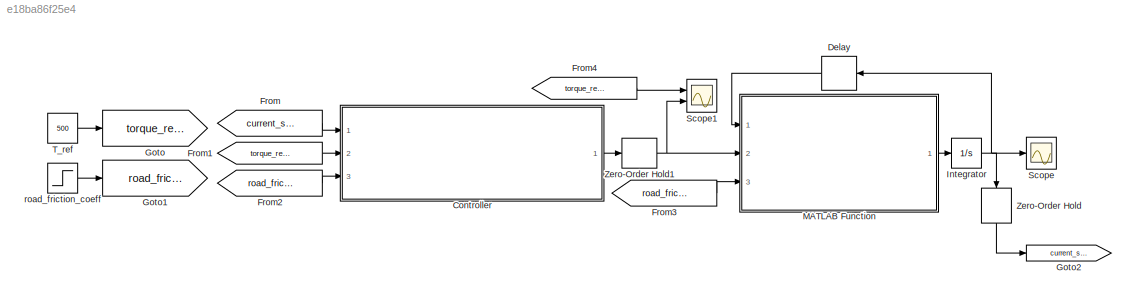
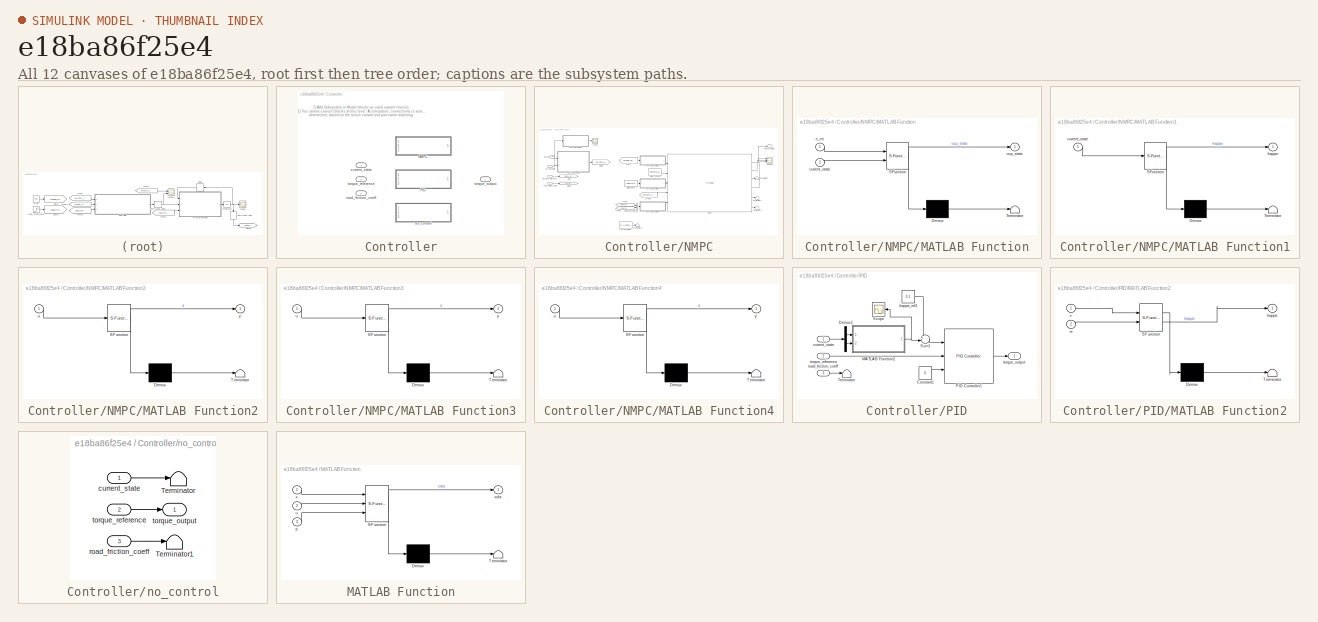
[diagram: thumbnail index - all 12 canvases of the model, root first then tree order]
MODEL slx_e18ba86f25e4
KIND model
CONFIG AbsTol = auto
CONFIG EnableMultiTasking = off
CONFIG FixedStep = auto
CONFIG MaxStep = auto
CONFIG MinStep = auto
CONFIG RelTol = 1e-3
CONFIG SampleTimeConstraint = Unconstrained
CONFIG SolverName = VariableStepAuto
CONFIG StartTime = 0.0
CONFIG StopTime = 3
BLOCK [SubSystem] Controller
  Ports = [3, 1]
  RequestExecContextInheritance = off
  Variant = on
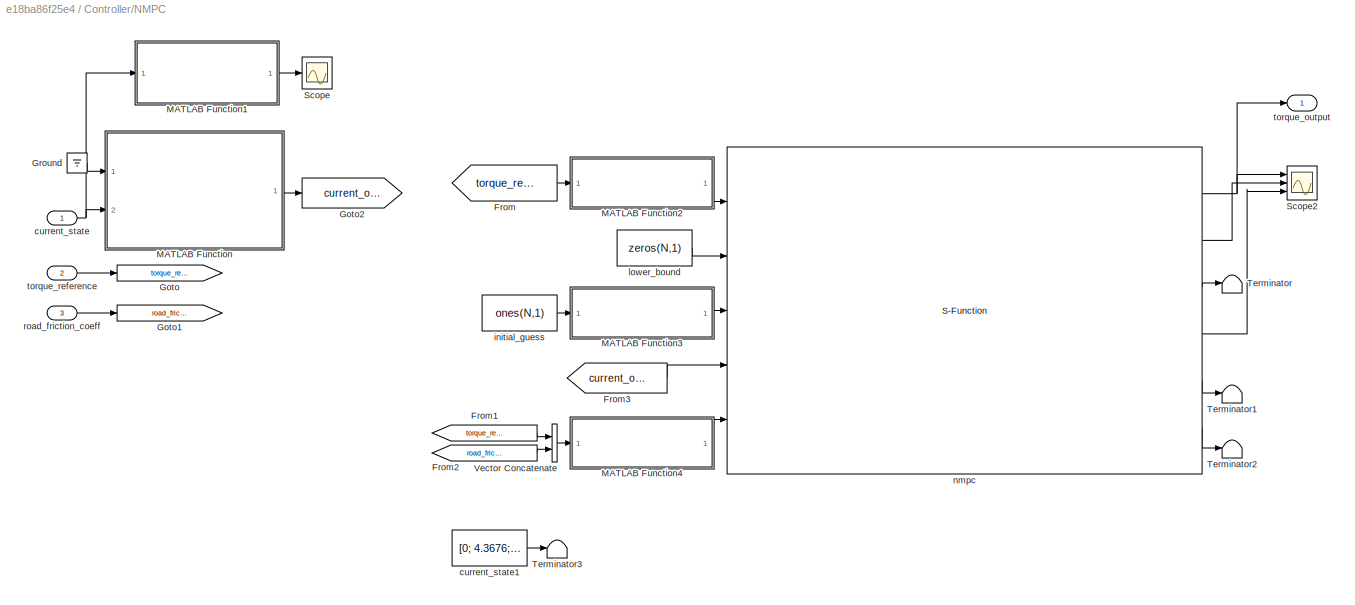
BLOCK [SubSystem] Controller/NMPC
  Ports = [3, 1]
  RequestExecContextInheritance = off
  VariantControl = controller_type == 1
BLOCK [From] Controller/NMPC/From
  GotoTag = torque_reference
BLOCK [From] Controller/NMPC/From1
  GotoTag = torque_reference
BLOCK [From] Controller/NMPC/From2
  GotoTag = road_friction_coeff
BLOCK [From] Controller/NMPC/From3
  GotoTag = current_ocp_state
BLOCK [Goto] Controller/NMPC/Goto
  GotoTag = torque_reference
BLOCK [Goto] Controller/NMPC/Goto1
  GotoTag = road_friction_coeff
BLOCK [Goto] Controller/NMPC/Goto2
  GotoTag = current_ocp_state
BLOCK [Ground] Controller/NMPC/Ground
BLOCK [SubSystem] Controller/NMPC/MATLAB Function
  ErrorFcn = Stateflow.Translate.translate
  PermitHierarchicalResolution = ExplicitOnly
  Ports = [2, 1]
  RequestExecContextInheritance = off
  SFBlockType = MATLAB Function
  TreatAsAtomicUnit = on
BLOCK [Demux] Controller/NMPC/MATLAB Function/ Demux 
  Outputs = 1
  Ports = [1, 1]
BLOCK [S-Function] Controller/NMPC/MATLAB Function/ SFunction 
  EnableBusSupport = on
  FunctionName = sf_sfun
  Parameters = R
  PortCounts = [2 2]
  Ports = [2, 2]
  SFcnIsStateOwnerBlock = off
  SFunctionDeploymentMode = off
  Tag = Stateflow S-Function 1
BLOCK [Terminator] Controller/NMPC/MATLAB Function/ Terminator 
BLOCK [Inport] Controller/NMPC/MATLAB Function/current_state
  Port = 2
BLOCK [Inport] Controller/NMPC/MATLAB Function/e_int
BLOCK [Outport] Controller/NMPC/MATLAB Function/ocp_state
BLOCK [SubSystem] Controller/NMPC/MATLAB Function1
  ErrorFcn = Stateflow.Translate.translate
  NameLocation = top
  PermitHierarchicalResolution = ExplicitOnly
  Ports = [1, 1]
  RequestExecContextInheritance = off
  SFBlockType = MATLAB Function
  TreatAsAtomicUnit = on
BLOCK [Demux] Controller/NMPC/MATLAB Function1/ Demux 
  Outputs = 1
  Ports = [1, 1]
BLOCK [S-Function] Controller/NMPC/MATLAB Function1/ SFunction 
  EnableBusSupport = on
  FunctionName = sf_sfun
  Parameters = R
  PortCounts = [1 2]
  Ports = [1, 2]
  SFcnIsStateOwnerBlock = off
  SFunctionDeploymentMode = off
  Tag = Stateflow S-Function 6
BLOCK [Terminator] Controller/NMPC/MATLAB Function1/ Terminator 
BLOCK [Inport] Controller/NMPC/MATLAB Function1/current_state
BLOCK [Outport] Controller/NMPC/MATLAB Function1/kappa
BLOCK [SubSystem] Controller/NMPC/MATLAB Function2
  ErrorFcn = Stateflow.Translate.translate
  PermitHierarchicalResolution = ExplicitOnly
  Ports = [1, 1]
  RequestExecContextInheritance = off
  SFBlockType = MATLAB Function
  TreatAsAtomicUnit = on
BLOCK [Demux] Controller/NMPC/MATLAB Function2/ Demux 
  Outputs = 1
  Ports = [1, 1]
BLOCK [S-Function] Controller/NMPC/MATLAB Function2/ SFunction 
  EnableBusSupport = on
  FunctionName = sf_sfun
  Parameters = N
  PortCounts = [1 2]
  Ports = [1, 2]
  SFcnIsStateOwnerBlock = off
  SFunctionDeploymentMode = off
  Tag = Stateflow S-Function 3
BLOCK [Terminator] Controller/NMPC/MATLAB Function2/ Terminator 
BLOCK [Inport] Controller/NMPC/MATLAB Function2/u
BLOCK [Outport] Controller/NMPC/MATLAB Function2/y
BLOCK [SubSystem] Controller/NMPC/MATLAB Function3
  ErrorFcn = Stateflow.Translate.translate
  PermitHierarchicalResolution = ExplicitOnly
  Ports = [1, 1]
  RequestExecContextInheritance = off
  SFBlockType = MATLAB Function
  TreatAsAtomicUnit = on
BLOCK [Demux] Controller/NMPC/MATLAB Function3/ Demux 
  Outputs = 1
  Ports = [1, 1]
BLOCK [S-Function] Controller/NMPC/MATLAB Function3/ SFunction 
  EnableBusSupport = on
  FunctionName = sf_sfun
  Parameters = N
  PortCounts = [1 2]
  Ports = [1, 2]
  SFcnIsStateOwnerBlock = off
  SFunctionDeploymentMode = off
  Tag = Stateflow S-Function 4
BLOCK [Terminator] Controller/NMPC/MATLAB Function3/ Terminator 
BLOCK [Inport] Controller/NMPC/MATLAB Function3/u
BLOCK [Outport] Controller/NMPC/MATLAB Function3/y
BLOCK [SubSystem] Controller/NMPC/MATLAB Function4
  ErrorFcn = Stateflow.Translate.translate
  PermitHierarchicalResolution = ExplicitOnly
  Ports = [1, 1]
  RequestExecContextInheritance = off
  SFBlockType = MATLAB Function
  TreatAsAtomicUnit = on
BLOCK [Demux] Controller/NMPC/MATLAB Function4/ Demux 
  Outputs = 1
  Ports = [1, 1]
BLOCK [S-Function] Controller/NMPC/MATLAB Function4/ SFunction 
  EnableBusSupport = on
  FunctionName = sf_sfun
  Parameters = N
  PortCounts = [1 2]
  Ports = [1, 2]
  SFcnIsStateOwnerBlock = off
  SFunctionDeploymentMode = off
  Tag = Stateflow S-Function 5
BLOCK [Terminator] Controller/NMPC/MATLAB Function4/ Terminator 
BLOCK [Inport] Controller/NMPC/MATLAB Function4/u
BLOCK [Outport] Controller/NMPC/MATLAB Function4/y
BLOCK [Scope] Controller/NMPC/Scope
  Floating = off
  NumInputPorts = 1
  Ports = [1]
  ScopeSpecificationString = Simulink.scopes.TimeScopeBlockCfg('CurrentConfiguration', extmgr.ConfigurationSet(extmgr.Configuration('Core','General UI',true),extmgr.Configuration('Core','Source UI',true),extmgr.Configuration('Sources','WiredSimulink',true,'DataLoggingVariableName','ScopeData2'),extmgr.Configuration('Visuals','Time Domain',true,'SerializedDisplays',{struct('MinYLimReal','-0.01354','MaxYLimReal','0.11618','YLab...<+1427ch>
BLOCK [Scope] Controller/NMPC/Scope2
  Floating = off
  NumInputPorts = 3
  Ports = [3]
  ScopeSpecificationString = Simulink.scopes.TimeScopeBlockCfg('CurrentConfiguration', extmgr.ConfigurationSet(extmgr.Configuration('Core','General UI',true),extmgr.Configuration('Core','Source UI',true),extmgr.Configuration('Sources','WiredSimulink',true,'DataLoggingVariableName','ScopeData1'),extmgr.Configuration('Visuals','Time Domain',true,'SerializedDisplays',{struct('MinYLimReal','33.71687','MaxYLimReal','466.71241','YL...<+2765ch>
BLOCK [Terminator] Controller/NMPC/Terminator
BLOCK [Terminator] Controller/NMPC/Terminator1
BLOCK [Terminator] Controller/NMPC/Terminator2
BLOCK [Terminator] Controller/NMPC/Terminator3
  Commented = on
BLOCK [Concatenate] Controller/NMPC/Vector Concatenate
  Ports = [2, 1]
BLOCK [Inport] Controller/NMPC/current_state
BLOCK [Constant] Controller/NMPC/current_state1
  Commented = on
  SampleTime = Ts
  Value = [0; 4.3676; 0]
BLOCK [Constant] Controller/NMPC/initial_guess
  SampleTime = Ts
  Value = ones(N,1)
BLOCK [Constant] Controller/NMPC/lower_bound
  SampleTime = Ts
  Value = zeros(N,1)
BLOCK [S-Function] Controller/NMPC/nmpc
  EnableBusSupport = off
  FunctionName = nmpc_simulinkBlock
  Ports = [5, 6]
  SFcnIsStateOwnerBlock = off
  SFunctionDeploymentMode = off
  SFunctionModules = nmpc nmpc_simulinkBlock
BLOCK [Inport] Controller/NMPC/road_friction_coeff
  Port = 3
BLOCK [Outport] Controller/NMPC/torque_output
BLOCK [Inport] Controller/NMPC/torque_reference
  Port = 2
BLOCK [SubSystem] Controller/PID
  Ports = [3, 1]
  RequestExecContextInheritance = off
  VariantControl = controller_type == 3
BLOCK [Constant] Controller/PID/Constant1
  SampleTime = Ts
  Value = 0
BLOCK [Demux] Controller/PID/Demux1
  Outputs = 2
  Ports = [1, 2]
BLOCK [SubSystem] Controller/PID/MATLAB Function2
  ErrorFcn = Stateflow.Translate.translate
  NameLocation = top
  PermitHierarchicalResolution = ExplicitOnly
  Ports = [2, 1]
  RequestExecContextInheritance = off
  SFBlockType = MATLAB Function
  TreatAsAtomicUnit = on
BLOCK [Demux] Controller/PID/MATLAB Function2/ Demux 
  Outputs = 1
  Ports = [1, 1]
BLOCK [S-Function] Controller/PID/MATLAB Function2/ SFunction 
  EnableBusSupport = on
  FunctionName = sf_sfun
  Parameters = R
  PortCounts = [2 2]
  Ports = [2, 2]
  SFcnIsStateOwnerBlock = off
  SFunctionDeploymentMode = off
  Tag = Stateflow S-Function 8
BLOCK [Terminator] Controller/PID/MATLAB Function2/ Terminator 
BLOCK [Outport] Controller/PID/MATLAB Function2/kappa
BLOCK [Inport] Controller/PID/MATLAB Function2/v
BLOCK [Inport] Controller/PID/MATLAB Function2/w
  Port = 2
BLOCK [Reference] Controller/PID/PID Controller1  REF=pid_lib/PID Controller
  Ports = [3, 1]
  SourceBlock = pid_lib/PID Controller
  SourceProductBaseCode = SL
  SourceType = PID 1dof
BLOCK [Scope] Controller/PID/Scope
  Floating = off
  NumInputPorts = 1
  Ports = [1]
  ScopeSpecificationString = Simulink.scopes.TimeScopeBlockCfg('CurrentConfiguration', extmgr.ConfigurationSet(extmgr.Configuration('Core','General UI',true),extmgr.Configuration('Core','Source UI',true),extmgr.Configuration('Sources','WiredSimulink',true,'DataLoggingVariableName','ScopeData3'),extmgr.Configuration('Visuals','Time Domain',true,'SerializedDisplays',{struct('MinYLimReal','-0.01834','MaxYLimReal','0.15932','YLab...<+1429ch>
BLOCK [Sum] Controller/PID/Sum1
  Inputs = +-|
  Ports = [2, 1]
BLOCK [Terminator] Controller/PID/Terminator
BLOCK [Inport] Controller/PID/current_state
BLOCK [Constant] Controller/PID/kappa_ref1
  SampleTime = Ts
  Value = 0.1
BLOCK [Inport] Controller/PID/road_friction_coeff
  Port = 3
BLOCK [Outport] Controller/PID/torque_output
BLOCK [Inport] Controller/PID/torque_reference
  Port = 2
BLOCK [Inport] Controller/current_state
BLOCK [SubSystem] Controller/no_control
  Ports = [3, 1]
  RequestExecContextInheritance = off
  VariantControl = controller_type == 0
BLOCK [Terminator] Controller/no_control/Terminator
BLOCK [Terminator] Controller/no_control/Terminator1
BLOCK [Inport] Controller/no_control/current_state
BLOCK [Inport] Controller/no_control/road_friction_coeff
  Port = 3
BLOCK [Outport] Controller/no_control/torque_output
BLOCK [Inport] Controller/no_control/torque_reference
  Port = 2
BLOCK [Inport] Controller/road_friction_coeff
  Port = 3
BLOCK [Outport] Controller/torque_output
BLOCK [Inport] Controller/torque_reference
  Port = 2
BLOCK [Delay] Delay
  DelayLength = 1
  InitialCondition = x0
  InputPortMap = u0
  NameLocation = top
  Ports = [1, 1]
BLOCK [From] From
  GotoTag = current_state
BLOCK [From] From1
  GotoTag = torque_reference
BLOCK [From] From2
  GotoTag = road_friction_coeff
BLOCK [From] From3
  GotoTag = road_friction_coeff
BLOCK [From] From4
  GotoTag = torque_reference
BLOCK [Goto] Goto
  GotoTag = torque_reference
BLOCK [Goto] Goto1
  GotoTag = road_friction_coeff
BLOCK [Goto] Goto2
  GotoTag = current_state
BLOCK [Integrator] Integrator
  InitialCondition = x0
  Ports = [1, 1]
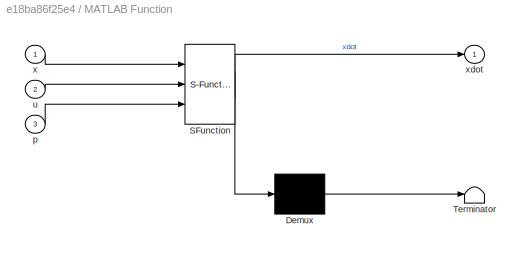
BLOCK [SubSystem] MATLAB Function
  ErrorFcn = Stateflow.Translate.translate
  PermitHierarchicalResolution = ExplicitOnly
  Ports = [3, 1]
  RequestExecContextInheritance = off
  SFBlockType = MATLAB Function
  TreatAsAtomicUnit = on
BLOCK [Demux] MATLAB Function/ Demux 
  Outputs = 1
  Ports = [1, 1]
BLOCK [S-Function] MATLAB Function/ SFunction 
  EnableBusSupport = on
  FunctionName = sf_sfun
  PortCounts = [3 2]
  Ports = [3, 2]
  SFcnIsStateOwnerBlock = off
  SFunctionDeploymentMode = off
  Tag = Stateflow S-Function 2
BLOCK [Terminator] MATLAB Function/ Terminator 
BLOCK [Inport] MATLAB Function/p
  Port = 3
BLOCK [Inport] MATLAB Function/u
  Port = 2
BLOCK [Inport] MATLAB Function/x
BLOCK [Outport] MATLAB Function/xdot
BLOCK [Scope] Scope
  Floating = off
  NumInputPorts = 1
  Ports = [1]
  ScopeSpecificationString = Simulink.scopes.TimeScopeBlockCfg('CurrentConfiguration', extmgr.ConfigurationSet(extmgr.Configuration('Core','General UI',true),extmgr.Configuration('Core','Source UI',true),extmgr.Configuration('Sources','WiredSimulink',true),extmgr.Configuration('Visuals','Time Domain',true,'SerializedDisplays',{struct('MinYLimReal','-0.06245','MaxYLimReal','14.56204','YLabelReal','','MinYLimMag','0.00000','Max...<+1376ch>
BLOCK [Scope] Scope1
  Floating = off
  NumInputPorts = 2
  Ports = [2]
  ScopeSpecificationString = Simulink.scopes.TimeScopeBlockCfg('CurrentConfiguration', extmgr.ConfigurationSet(extmgr.Configuration('Core','General UI',true),extmgr.Configuration('Core','Source UI',true),extmgr.Configuration('Sources','WiredSimulink',true,'DataLoggingVariableName','ScopeData4'),extmgr.Configuration('Visuals','Time Domain',true,'SerializedDisplays',{struct('MinYLimReal','24.14348','MaxYLimReal','552.87295','YL...<+1447ch>
BLOCK [Constant] T_ref
  SampleTime = Ts
  Value = 500
BLOCK [ZeroOrderHold] Zero-Order Hold
  NameLocation = left
  SampleTime = Ts
BLOCK [ZeroOrderHold] Zero-Order Hold1
  SampleTime = Ts/100
BLOCK [Step] road_friction_coeff
  After = 0.05
  Before = 0.15
  SampleTime = Ts
  Time = 0.5
ANNOTATION Controller: 1) Add Subsystem or Model blocks as valid variant choices. 2) You cannot connect blocks at this level. At simulation, connectivity is automatically determined, based on the active variant and port name matching.
LINE Controller/NMPC/From1:1 -> Controller/NMPC/Vector Concatenate:1
LINE Controller/NMPC/From2:1 -> Controller/NMPC/Vector Concatenate:2
LINE Controller/NMPC/From3:1 -> Controller/NMPC/nmpc:4
LINE Controller/NMPC/From:1 -> Controller/NMPC/MATLAB Function2:1
LINE Controller/NMPC/Ground:1 -> Controller/NMPC/MATLAB Function:1
LINE Controller/NMPC/MATLAB Function1:1 -> Controller/NMPC/Scope:1
LINE Controller/NMPC/MATLAB Function2:1 -> Controller/NMPC/nmpc:1
LINE Controller/NMPC/MATLAB Function3:1 -> Controller/NMPC/nmpc:3
LINE Controller/NMPC/MATLAB Function4:1 -> Controller/NMPC/nmpc:5
LINE Controller/NMPC/MATLAB Function:1 -> Controller/NMPC/Goto2:1
LINE Controller/NMPC/Vector Concatenate:1 -> Controller/NMPC/MATLAB Function4:1
LINE Controller/NMPC/current_state1:1 -> Controller/NMPC/Terminator3:1
NET Controller/NMPC/current_state:1 -> Controller/NMPC/MATLAB Function1:1, Controller/NMPC/MATLAB Function:2
LINE Controller/NMPC/initial_guess:1 -> Controller/NMPC/MATLAB Function3:1
LINE Controller/NMPC/lower_bound:1 -> Controller/NMPC/nmpc:2
NET Controller/NMPC/nmpc:1 -> Controller/NMPC/Scope2:1, Controller/NMPC/torque_output:1
LINE Controller/NMPC/nmpc:2 -> Controller/NMPC/Scope2:2
LINE Controller/NMPC/nmpc:3 -> Controller/NMPC/Terminator:1
LINE Controller/NMPC/nmpc:4 -> Controller/NMPC/Scope2:3
LINE Controller/NMPC/nmpc:5 -> Controller/NMPC/Terminator1:1
LINE Controller/NMPC/nmpc:6 -> Controller/NMPC/Terminator2:1
LINE Controller/NMPC/road_friction_coeff:1 -> Controller/NMPC/Goto1:1
LINE Controller/NMPC/torque_reference:1 -> Controller/NMPC/Goto:1
LINE Controller/PID/Constant1:1 -> Controller/PID/PID Controller1:3
LINE Controller/PID/Demux1:1 -> Controller/PID/MATLAB Function2:1
LINE Controller/PID/Demux1:2 -> Controller/PID/MATLAB Function2:2
NET Controller/PID/MATLAB Function2:1 -> Controller/PID/Scope:1, Controller/PID/Sum1:2
LINE Controller/PID/PID Controller1:1 -> Controller/PID/torque_output:1
LINE Controller/PID/Sum1:1 -> Controller/PID/PID Controller1:1
LINE Controller/PID/current_state:1 -> Controller/PID/Demux1:1
LINE Controller/PID/kappa_ref1:1 -> Controller/PID/Sum1:1
LINE Controller/PID/road_friction_coeff:1 -> Controller/PID/Terminator:1
LINE Controller/PID/torque_reference:1 -> Controller/PID/PID Controller1:2
LINE Controller/no_control/current_state:1 -> Controller/no_control/Terminator:1
LINE Controller/no_control/road_friction_coeff:1 -> Controller/no_control/Terminator1:1
LINE Controller/no_control/torque_reference:1 -> Controller/no_control/torque_output:1
LINE Controller:1 -> Zero-Order Hold1:1
LINE Delay:1 -> MATLAB Function:1
LINE From1:1 -> Controller:2
LINE From2:1 -> Controller:3
LINE From3:1 -> MATLAB Function:3
LINE From4:1 -> Scope1:1
LINE From:1 -> Controller:1
NET Integrator:1 -> Delay:1, Scope:1, Zero-Order Hold:1
LINE MATLAB Function:1 -> Integrator:1
LINE T_ref:1 -> Goto:1
NET Zero-Order Hold1:1 -> MATLAB Function:2, Scope1:2
LINE Zero-Order Hold:1 -> Goto2:1
LINE road_friction_coeff:1 -> Goto1:1
note: NET lines group one-source signal fan-out (src -> all destinations, sorted); 1:1 wires keep LINE
CHART MATLAB Function states=1 transitions=1
  STATE_LABEL 'eML_blk_kernel()'
  STATE_LABEL 'SCRIPT:\nfunction xdot = simulation_model_ode(x,u,p)\n% TODO: find realistic motor torque limit and driving situation for slip\n% wet asphalt? (Fig. 4 in https://ieeexplore.ieee.org/document/6043067)\n\n% system dimensions\n% nx = 2;  % vehicle speed, wheel speed\n% nu = 1;  % wheel torque\n\n% system parameters\nm = 1600/4;     % [kg] quarter car mass\ng = 9.81;       % [m/s^2] gravity constant\nR = 0.318;  ...<+744ch>'
CHART Controller/NMPC/MATLAB Function2 states=1 transitions=1
  STATE_LABEL 'eML_blk_kernel()'
  STATE_LABEL 'SCRIPT:\nfunction y = repeat_elements(u, N)\n    y = repmat(u,N,1);\nend\n'
CHART Controller/NMPC/MATLAB Function3 states=1 transitions=1
  STATE_LABEL 'eML_blk_kernel()'
  STATE_LABEL 'SCRIPT:\nfunction y = repeat_elements(u, N)\n    y = repmat(u,N,1);\nend\n'
CHART Controller/NMPC/MATLAB Function4 states=1 transitions=1
  STATE_LABEL 'eML_blk_kernel()'
  STATE_LABEL 'SCRIPT:\nfunction y = repeat_elements(u, N)\n    y = repmat(u,N,1);\nend\n'
CHART Controller/NMPC/MATLAB Function1 states=1 transitions=1
  STATE_LABEL 'eML_blk_kernel()'
  STATE_LABEL 'SCRIPT:\nfunction kappa = calculate_slip(current_state,R)\n    v = current_state(1);\n    w = current_state(2);\n    kappa = 1-v/(w*R);\nend\n'
CHART Controller/PID/MATLAB Function2 states=1 transitions=1
  STATE_LABEL 'eML_blk_kernel()'
  STATE_LABEL 'SCRIPT:\nfunction kappa = calculate_slip(v,w,R)\n    kappa = 1-v/(w*R);\nend\n'
CHART Controller/NMPC/MATLAB Function states=1 transitions=1
  STATE_LABEL 'eML_blk_kernel()'
  STATE_LABEL 'SCRIPT:\nfunction ocp_state = create_ocp_state(e_int,current_state, R)\n    v = current_state(1);\n    w = current_state(2);\n    ocp_state = [w*R-v; w; e_int];\nend\n'
CHART  states=0 transitions=0
CHART  states=0 transitions=0
CHART  states=0 transitions=0
CHART  states=0 transitions=0
CHART  states=0 transitions=0
CHART  states=0 transitions=0
CHART  states=0 transitions=0
